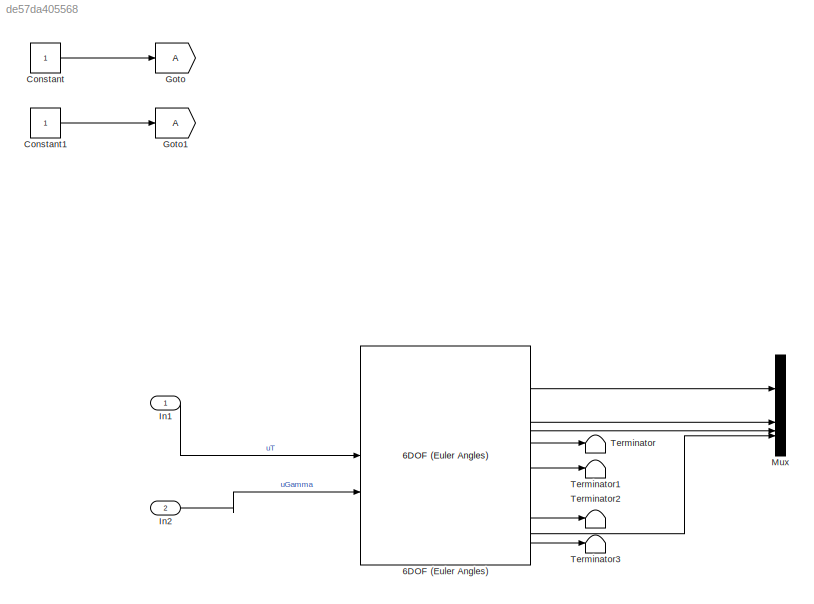
MODEL slx_de57da405568
KIND model
CONFIG AbsTol = auto
CONFIG EnableMultiTasking = off
CONFIG FixedStep = auto
CONFIG MaxStep = auto
CONFIG MinStep = auto
CONFIG RelTol = 1e-3
CONFIG SampleTimeConstraint = Unconstrained
CONFIG SolverName = VariableStepAuto
CONFIG StartTime = 0.0
CONFIG StopTime = 10.0
BLOCK [Reference] 6DOF (Euler Angles)  REF=shared6dof/6DOF (Euler Angles)
  LibrarySourceBlock = aerolib6dof2/6DOF (Euler Angles)
  SourceBlock = shared6dof/6DOF (Euler Angles)
  SourceType = 6DOF EoM (Body Axis)
BLOCK [Constant] Constant
BLOCK [Constant] Constant1
BLOCK [Goto] Goto
BLOCK [Goto] Goto1
BLOCK [Inport] In1
BLOCK [Inport] In2
  Port = 2
BLOCK [Mux] Mux
  DisplayOption = bar
BLOCK [Terminator] Terminator
BLOCK [Terminator] Terminator1
BLOCK [Terminator] Terminator2
BLOCK [Terminator] Terminator3
LINE 6DOF (Euler Angles):1 -> Mux:1
LINE 6DOF (Euler Angles):2 -> Mux:2
LINE 6DOF (Euler Angles):3 -> Mux:3
LINE 6DOF (Euler Angles):4 -> Terminator:1
LINE 6DOF (Euler Angles):5 -> Terminator1:1
LINE 6DOF (Euler Angles):6 -> Mux:4
LINE 6DOF (Euler Angles):7 -> Terminator2:1
LINE 6DOF (Euler Angles):8 -> Terminator3:1
LINE Constant1:1 -> Goto1:1
LINE Constant:1 -> Goto:1
LINE In1:1 -> 6DOF (Euler Angles):1
LINE In2:1 -> 6DOF (Euler Angles):2
